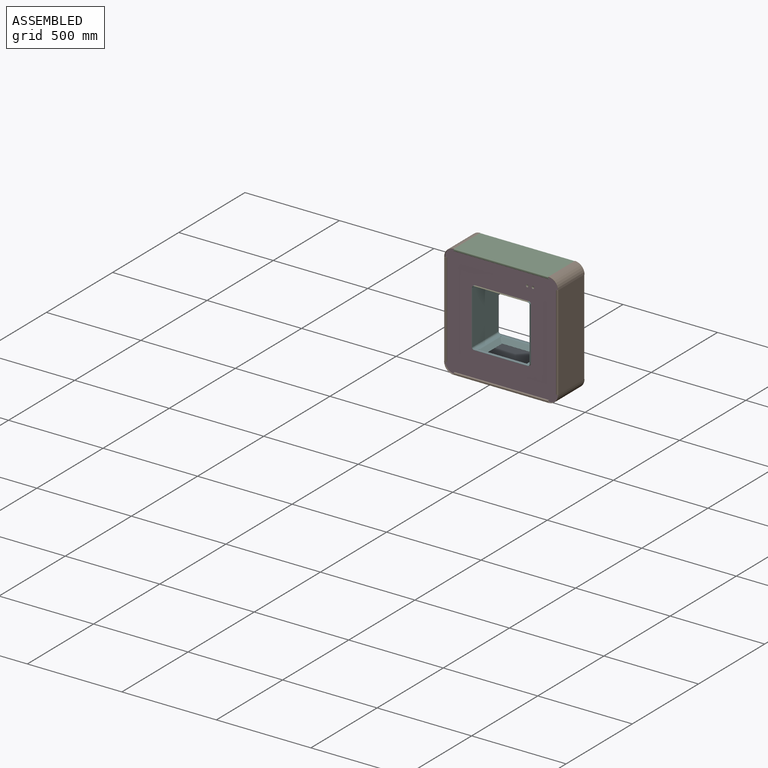
[diagram: assembled view]
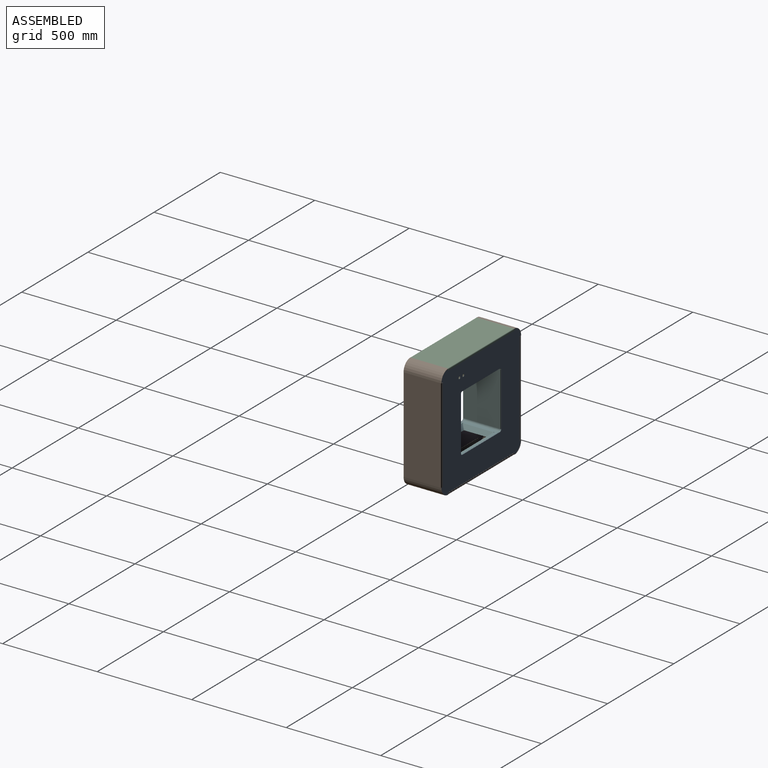
[diagram: assembled view, second angle]
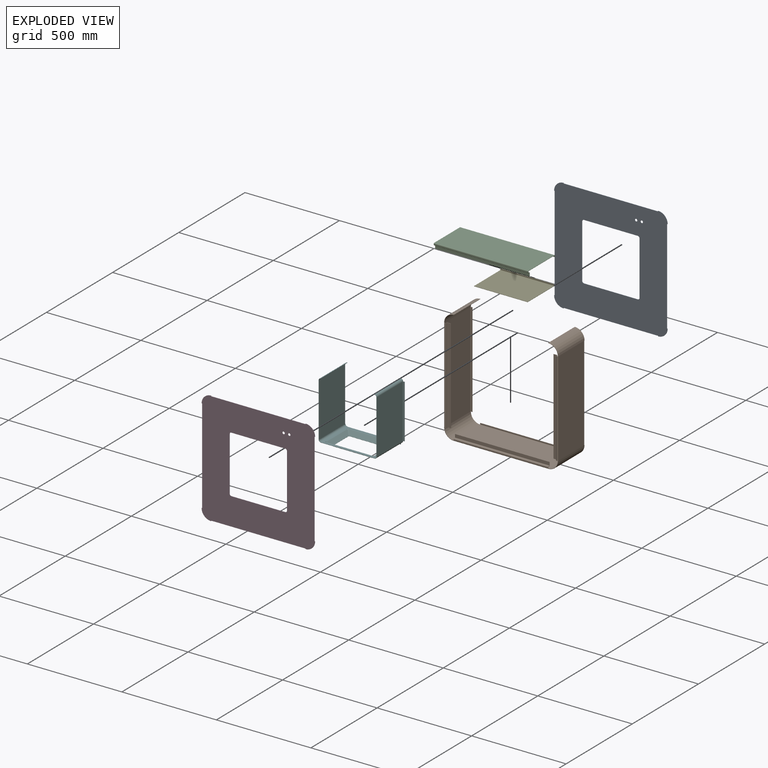
[diagram: exploded view]
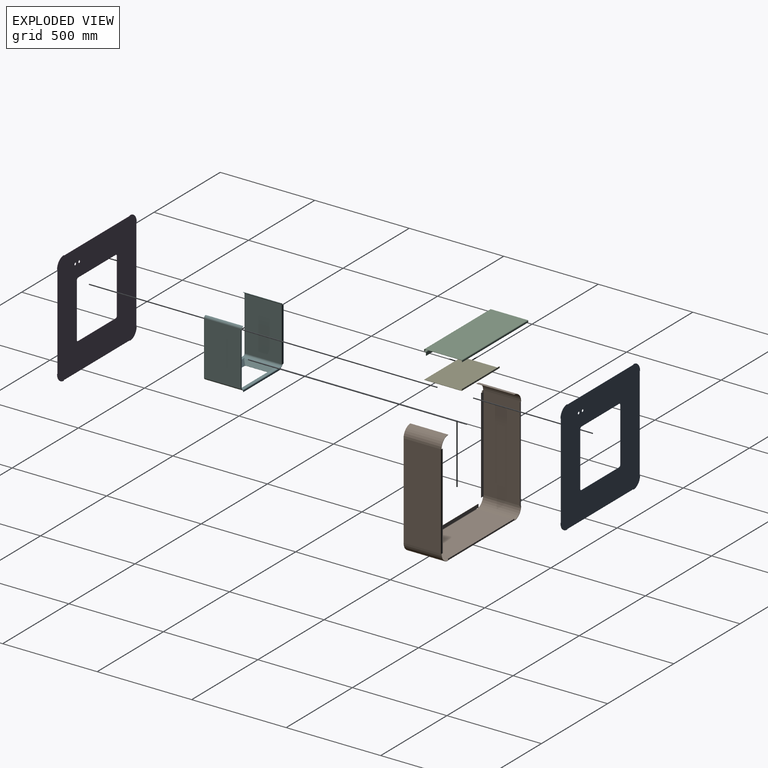
[diagram: exploded view, second angle]
ASSEMBLY  parts=6 mates=7
PART A: 28 faces, bbox 600x1.5x600 mm
  f0: cylinder r=50mm len=50mm, axis (0,-1,0), area 117.8mm2, adj f1,f25,f26,f27
  f1: plane 2.8x1.5mm, normal (1,0,0), area 4.2mm2, adj f0,f2,f26,f27
  f2: plane 500x1.5mm, normal (0,0,1), area 750mm2, adj f1,f3,f26,f27
  f3: plane 2.8x1.5mm, normal (-1,0,0), area 4.2mm2, adj f2,f4,f26,f27
  f4: cylinder r=50mm len=50mm, axis (0,-1,0), area 117.8mm2, adj f3,f5,f26,f27
  f5: plane 2.8x1.5mm, normal (0,0,-1), area 4.2mm2, adj f4,f6,f26,f27
  f6: plane 500x1.5mm, normal (1,0,0), area 750mm2, adj f5,f7,f26,f27
  f7: plane 2.8x1.5mm, normal (0,0,1), area 4.2mm2, adj f6,f8,f26,f27
  f8: cylinder r=50mm len=50mm, axis (0,-1,0), area 117.8mm2, adj f7,f9,f26,f27
  f9: plane 2.8x1.5mm, normal (-1,0,0), area 4.2mm2, adj f8,f10,f26,f27
  f10: plane 500x1.5mm, normal (0,0,-1), area 750mm2, adj f9,f11,f26,f27
  f11: plane 2.8x1.5mm, normal (1,0,0), area 4.2mm2, adj f10,f12,f26,f27
  f12: cylinder r=50mm len=50mm, axis (0,-1,0), area 117.8mm2, adj f11,f13,f26,f27
  f13: plane 2.8x1.5mm, normal (0,0,1), area 4.2mm2, adj f12,f14,f26,f27
  f14: plane 500x1.5mm, normal (-1,0,0), area 750mm2, adj f13,f25,f26,f27
  f15: cylinder r=10mm len=10mm, axis (0,-1,0), area 23.6mm2, adj f16,f22,f26,f27
  f16: plane 284x1.5mm, normal (1,0,0), area 426mm2, adj f15,f17,f26,f27
  f17: cylinder r=10mm len=10mm, axis (0,-1,0), area 23.6mm2, adj f16,f18,f26,f27
  f18: plane 284x1.5mm, normal (0,0,1), area 426mm2, adj f17,f19,f26,f27
  f19: cylinder r=10mm len=10mm, axis (0,-1,0), area 23.6mm2, adj f18,f20,f26,f27
  f20: plane 284x1.5mm, normal (-1,0,0), area 426mm2, adj f19,f21,f26,f27
  f21: cylinder r=10mm len=10mm, axis (0,-1,0), area 23.6mm2, adj f20,f22,f26,f27
  f22: plane 284x1.5mm, normal (0,0,-1), area 426mm2, adj f15,f21,f26,f27
  f23: cylinder r=6.35mm len=12.7mm, axis (0,-1,0), area 59.8mm2, adj f26,f27
  f24: cylinder r=6.35mm len=12.7mm, axis (0,-1,0), area 59.8mm2, adj f26,f27
  f25: plane 2.8x1.5mm, normal (0,0,-1), area 4.2mm2, adj f0,f14,f26,f27
  f26: plane 600x600mm, normal (0,1,0), area 259670.5mm2, adj f0,f1,f2,f3,f4,f5,f6,f7
  f27: plane 600x600mm, normal (0,-1,0), area 259670.5mm2, adj f0,f1,f2,f3,f4,f5,f6,f7
PART B: 144 faces, bbox 603x201.5x603 mm
  f0: plane 2x0.63mm, normal (0,0,-1), area 0.4mm2, adj f1,f23,f142
  f1: plane 1.5x1.5mm, normal (0,0,-1), area 1.8mm2, adj f0,f20,f23,f24,f142
  f2: plane 2x0.63mm, normal (0,0,-1), area 0.4mm2, adj f22,f23,f133
  f3: plane 2x0.63mm, normal (0,0,1), area 0.4mm2, adj f4,f40,f108
  f4: plane 1.5x1.5mm, normal (0,0,1), area 1.8mm2, adj f3,f36,f40,f41,f108
  f5: plane 2x0.63mm, normal (0,0,1), area 0.4mm2, adj f39,f40,f99
  f6: plane 2x0.63mm, normal (-1,0,0), area 0.4mm2, adj f7,f18,f49
  f7: plane 1.5x1.5mm, normal (-1,0,0), area 1.8mm2, adj f6,f14,f18,f19,f49
  f8: plane 2x0.63mm, normal (-1,0,0), area 0.4mm2, adj f17,f18,f74
  f9: plane 500x194.5mm, normal (0,0,-1), area 97250mm2, adj f18,f40,f49,f74
  f10: plane 500x194.5mm, normal (0,0,1), area 97250mm2, adj f19,f41,f50,f75
  f11: plane 500x194.5mm, normal (1,0,0), area 97250mm2, adj f18,f23,f133,f142
  f12: plane 500x194.5mm, normal (-1,0,0), area 97250mm2, adj f19,f24,f134,f143
  f13: plane 2x0.63mm, normal (0,0,1), area 0.4mm2, adj f17,f18,f133
  f14: plane 51.5x51.5mm, normal (0,1,0), area 119.6mm2, adj f7,f15,f18,f19
  f15: plane 1.5x1.5mm, normal (0,0,1), area 1.8mm2, adj f14,f16,f18,f19,f142
  f16: plane 2x0.63mm, normal (0,0,1), area 0.4mm2, adj f15,f18,f142
  f17: plane 51.5x51.5mm, normal (0,-1,0), area 119.6mm2, adj f8,f13,f18,f19,f51,f132
  f18: cylinder r=51.5mm len=200mm, axis (0,-1,0), area 16179.2mm2, adj f6,f7,f8,f9,f11,f13,f14,f15
  f19: cylinder r=50mm len=200mm, axis (0,-1,0), area 15708mm2, adj f7,f10,f12,f14,f15,f17,f42,f51
  f20: plane 51.5x51.5mm, normal (0,1,0), area 119.6mm2, adj f1,f21,f23,f24
  f21: plane 200x1.5mm, normal (-1,0,0), area 300mm2, adj f20,f22,f23,f24
  f22: plane 51.5x51.5mm, normal (0,-1,0), area 119.6mm2, adj f2,f21,f23,f24,f110
  f23: cylinder r=51.5mm len=200mm, axis (0,-1,0), area 16179.2mm2, adj f0,f1,f2,f11,f20,f21,f22
  f24: cylinder r=50mm len=200mm, axis (0,-1,0), area 15708mm2, adj f1,f12,f20,f21,f22,f110,f136
  f25: plane 2x0.63mm, normal (1,0,0), area 0.4mm2, adj f39,f40,f74
  f26: plane 500x194.5mm, normal (-1,0,0), area 97250mm2, adj f34,f40,f99,f108
  f27: plane 500x194.5mm, normal (1,0,0), area 97250mm2, adj f35,f41,f100,f109
  f28: plane 2x0.63mm, normal (0,0,-1), area 0.4mm2, adj f32,f34,f99
  f29: plane 51.5x51.5mm, normal (0,1,0), area 119.6mm2, adj f30,f33,f34,f35
  f30: plane 1.5x1.5mm, normal (0,0,-1), area 1.8mm2, adj f29,f31,f34,f35,f108
  f31: plane 2x0.63mm, normal (0,0,-1), area 0.4mm2, adj f30,f34,f108
  f32: plane 51.5x51.5mm, normal (0,-1,0), area 119.6mm2, adj f28,f33,f34,f35,f98
  f33: plane 200x1.5mm, normal (1,0,0), area 300mm2, adj f29,f32,f34,f35
  f34: cylinder r=51.5mm len=200mm, axis (0,-1,0), area 16179.2mm2, adj f26,f28,f29,f30,f31,f32,f33
  f35: cylinder r=50mm len=200mm, axis (0,-1,0), area 15708mm2, adj f27,f29,f30,f32,f33,f98,f101
  f36: plane 51.5x51.5mm, normal (0,1,0), area 119.6mm2, adj f4,f37,f40,f41
  f37: plane 1.5x1.5mm, normal (1,0,0), area 1.8mm2, adj f36,f38,f40,f41,f49
  f38: plane 2x0.63mm, normal (1,0,0), area 0.4mm2, adj f37,f40,f49
  f39: plane 51.5x51.5mm, normal (0,-1,0), area 119.6mm2, adj f5,f25,f40,f41,f73,f76
  f40: cylinder r=51.5mm len=200mm, axis (0,-1,0), area 16179.2mm2, adj f3,f4,f5,f9,f25,f26,f36,f37
  f41: cylinder r=50mm len=200mm, axis (0,-1,0), area 15708mm2, adj f4,f10,f27,f36,f37,f39,f43,f73
  f42: plane 3.5x2mm, normal (1,0,0), area 3.5mm2, adj f19,f45,f49,f50
  f43: plane 3.5x2mm, normal (-1,0,0), area 3.5mm2, adj f41,f46,f49,f50
  f44: plane 500x1.5mm, normal (0,0,1), area 750mm2, adj f45,f46,f47,f48
  f45: plane 6.5x1.5mm, normal (1,0,0), area 9.8mm2, adj f42,f44,f47,f48
  f46: plane 6.5x1.5mm, normal (-1,0,0), area 9.8mm2, adj f43,f44,f47,f48
  f47: plane 500x6.5mm, normal (0,1,0), area 3250mm2, adj f44,f45,f46,f49
  f48: plane 500x6.5mm, normal (0,-1,0), area 3250mm2, adj f44,f45,f46,f50
  f49: cylinder r=3.5mm len=500mm, axis (1,0,0), area 2748.9mm2, adj f6,f7,f9,f37,f38,f42,f43,f47
  f50: cylinder r=2mm len=500mm, axis (1,0,0), area 1570.8mm2, adj f10,f42,f43,f48
  f51: plane 3.5x2.87mm, normal (1,0,0), area 3.9mm2, adj f17,f19,f70,f74,f75
  f52: plane 500x1.5mm, normal (0,0,1), area 750mm2, adj f53,f54,f55,f56
  f53: plane 16.5x1.5mm, normal (-1,0,0), area 24.7mm2, adj f52,f55,f56,f57
  f54: plane 16.5x1.5mm, normal (1,0,0), area 24.7mm2, adj f52,f55,f56,f58
  f55: plane 500x16.5mm, normal (0,-1,0), area 8250mm2, adj f52,f53,f54,f60
  f56: plane 500x16.5mm, normal (0,1,0), area 8250mm2, adj f52,f53,f54,f59
  f57: plane 3.5x3.5mm, normal (-1,0,0), area 6.5mm2, adj f53,f59,f60,f61
  f58: plane 3.5x3.5mm, normal (1,0,0), area 6.5mm2, adj f54,f59,f60,f62
  f59: cylinder r=3.5mm len=500mm, axis (-1,0,0), area 2748.9mm2, adj f56,f57,f58,f64
  f60: cylinder r=2mm len=500mm, axis (-1,0,0), area 1570.8mm2, adj f55,f57,f58,f63
  f61: plane 4.5x1.5mm, normal (-1,0,0), area 6.8mm2, adj f57,f63,f64,f66
  f62: plane 4.5x1.5mm, normal (1,0,0), area 6.8mm2, adj f58,f63,f64,f65
  f63: plane 500x4.5mm, normal (0,0,1), area 2250mm2, adj f60,f61,f62,f67
  f64: plane 500x4.5mm, normal (0,0,-1), area 2250mm2, adj f59,f61,f62,f68
  f65: plane 3.5x3.5mm, normal (1,0,0), area 6.5mm2, adj f62,f67,f68,f70
  f66: plane 3.5x3.5mm, normal (-1,0,0), area 6.5mm2, adj f61,f67,f68,f69
  f67: cylinder r=3.5mm len=500mm, axis (1,0,0), area 2748.9mm2, adj f63,f65,f66,f71
  f68: cylinder r=2mm len=500mm, axis (1,0,0), area 1570.8mm2, adj f64,f65,f66,f72
  f69: plane 4.5x1.5mm, normal (-1,0,0), area 6.8mm2, adj f66,f71,f72,f73
  f70: plane 4.5x1.5mm, normal (1,0,0), area 6.8mm2, adj f51,f65,f71,f72
  f71: plane 500x4.5mm, normal (0,-1,0), area 2250mm2, adj f67,f69,f70,f74
  f72: plane 500x4.5mm, normal (0,1,0), area 2250mm2, adj f68,f69,f70,f75
  f73: plane 3.5x2.87mm, normal (-1,0,0), area 3.9mm2, adj f39,f41,f69,f74,f75
  f74: cylinder r=3.5mm len=500mm, axis (1,0,0), area 2748.9mm2, adj f8,f9,f25,f51,f71,f73
  f75: cylinder r=2mm len=500mm, axis (1,0,0), area 1570.8mm2, adj f10,f51,f72,f73
  f76: plane 3.5x2.87mm, normal (0,0,-1), area 3.9mm2, adj f39,f41,f95,f99,f100
  f77: plane 500x1.5mm, normal (1,0,0), area 750mm2, adj f78,f79,f80,f81
  f78: plane 16.5x1.5mm, normal (0,0,1), area 24.7mm2, adj f77,f80,f81,f82
  f79: plane 16.5x1.5mm, normal (0,0,-1), area 24.7mm2, adj f77,f80,f81,f83
  f80: plane 500x16.5mm, normal (0,-1,0), area 8250mm2, adj f77,f78,f79,f85
  f81: plane 500x16.5mm, normal (0,1,0), area 8250mm2, adj f77,f78,f79,f84
  f82: plane 3.5x3.5mm, normal (0,0,1), area 6.5mm2, adj f78,f84,f85,f86
  f83: plane 3.5x3.5mm, normal (0,0,-1), area 6.5mm2, adj f79,f84,f85,f87
  f84: cylinder r=3.5mm len=500mm, axis (0,0,1), area 2748.9mm2, adj f81,f82,f83,f89
  f85: cylinder r=2mm len=500mm, axis (0,0,1), area 1570.8mm2, adj f80,f82,f83,f88
  f86: plane 4.5x1.5mm, normal (0,0,1), area 6.8mm2, adj f82,f88,f89,f91
  f87: plane 4.5x1.5mm, normal (0,0,-1), area 6.8mm2, adj f83,f88,f89,f90
  f88: plane 500x4.5mm, normal (1,0,0), area 2250mm2, adj f85,f86,f87,f92
  f89: plane 500x4.5mm, normal (-1,0,0), area 2250mm2, adj f84,f86,f87,f93
  f90: plane 3.5x3.5mm, normal (0,0,-1), area 6.5mm2, adj f87,f92,f93,f95
  f91: plane 3.5x3.5mm, normal (0,0,1), area 6.5mm2, adj f86,f92,f93,f94
  f92: cylinder r=3.5mm len=500mm, axis (0,0,-1), area 2748.9mm2, adj f88,f90,f91,f96
  f93: cylinder r=2mm len=500mm, axis (0,0,-1), area 1570.8mm2, adj f89,f90,f91,f97
  f94: plane 4.5x1.5mm, normal (0,0,1), area 6.8mm2, adj f91,f96,f97,f98
  f95: plane 4.5x1.5mm, normal (0,0,-1), area 6.8mm2, adj f76,f90,f96,f97
  f96: plane 500x4.5mm, normal (0,-1,0), area 2250mm2, adj f92,f94,f95,f99
  f97: plane 500x4.5mm, normal (0,1,0), area 2250mm2, adj f93,f94,f95,f100
  f98: plane 3.5x2.87mm, normal (0,0,1), area 3.9mm2, adj f32,f35,f94,f99,f100
  f99: cylinder r=3.5mm len=500mm, axis (0,0,-1), area 2748.9mm2, adj f5,f26,f28,f76,f96,f98
  f100: cylinder r=2mm len=500mm, axis (0,0,-1), area 1570.8mm2, adj f27,f76,f97,f98
  f101: plane 3.5x2mm, normal (0,0,1), area 3.5mm2, adj f35,f105,f108,f109
  f102: plane 3.5x2mm, normal (0,0,-1), area 3.5mm2, adj f41,f104,f108,f109
  f103: plane 500x1.5mm, normal (1,0,0), area 750mm2, adj f104,f105,f106,f107
  f104: plane 6.5x1.5mm, normal (0,0,-1), area 9.8mm2, adj f102,f103,f106,f107
  f105: plane 6.5x1.5mm, normal (0,0,1), area 9.8mm2, adj f101,f103,f106,f107
  f106: plane 500x6.5mm, normal (0,1,0), area 3250mm2, adj f103,f104,f105,f108
  f107: plane 500x6.5mm, normal (0,-1,0), area 3250mm2, adj f103,f104,f105,f109
  f108: cylinder r=3.5mm len=500mm, axis (0,0,-1), area 2748.9mm2, adj f3,f4,f26,f30,f31,f101,f102,f106
  f109: cylinder r=2mm len=500mm, axis (0,0,-1), area 1570.8mm2, adj f27,f101,f102,f107
  f110: plane 3.5x2.87mm, normal (0,0,1), area 3.9mm2, adj f22,f24,f129,f133,f134
  f111: plane 500x1.5mm, normal (-1,0,0), area 750mm2, adj f112,f113,f114,f115
  f112: plane 16.5x1.5mm, normal (0,0,-1), area 24.7mm2, adj f111,f114,f115,f116
  f113: plane 16.5x1.5mm, normal (0,0,1), area 24.7mm2, adj f111,f114,f115,f117
  f114: plane 500x16.5mm, normal (0,-1,0), area 8250mm2, adj f111,f112,f113,f119
  f115: plane 500x16.5mm, normal (0,1,0), area 8250mm2, adj f111,f112,f113,f118
  f116: plane 3.5x3.5mm, normal (0,0,-1), area 6.5mm2, adj f112,f118,f119,f120
  f117: plane 3.5x3.5mm, normal (0,0,1), area 6.5mm2, adj f113,f118,f119,f121
  f118: cylinder r=3.5mm len=500mm, axis (0,0,-1), area 2748.9mm2, adj f115,f116,f117,f123
  f119: cylinder r=2mm len=500mm, axis (0,0,-1), area 1570.8mm2, adj f114,f116,f117,f122
  f120: plane 4.5x1.5mm, normal (0,0,-1), area 6.8mm2, adj f116,f122,f123,f125
  f121: plane 4.5x1.5mm, normal (0,0,1), area 6.8mm2, adj f117,f122,f123,f124
  f122: plane 500x4.5mm, normal (-1,0,0), area 2250mm2, adj f119,f120,f121,f126
  f123: plane 500x4.5mm, normal (1,0,0), area 2250mm2, adj f118,f120,f121,f127
  f124: plane 3.5x3.5mm, normal (0,0,1), area 6.5mm2, adj f121,f126,f127,f129
  f125: plane 3.5x3.5mm, normal (0,0,-1), area 6.5mm2, adj f120,f126,f127,f128
  f126: cylinder r=3.5mm len=500mm, axis (0,0,1), area 2748.9mm2, adj f122,f124,f125,f130
  f127: cylinder r=2mm len=500mm, axis (0,0,1), area 1570.8mm2, adj f123,f124,f125,f131
  f128: plane 4.5x1.5mm, normal (0,0,-1), area 6.8mm2, adj f125,f130,f131,f132
  f129: plane 4.5x1.5mm, normal (0,0,1), area 6.8mm2, adj f110,f124,f130,f131
  f130: plane 500x4.5mm, normal (0,-1,0), area 2250mm2, adj f126,f128,f129,f133
  f131: plane 500x4.5mm, normal (0,1,0), area 2250mm2, adj f127,f128,f129,f134
  f132: plane 3.5x2.87mm, normal (0,0,-1), area 3.9mm2, adj f17,f19,f128,f133,f134
  f133: cylinder r=3.5mm len=500mm, axis (0,0,1), area 2748.9mm2, adj f2,f11,f13,f110,f130,f132
  f134: cylinder r=2mm len=500mm, axis (0,0,1), area 1570.8mm2, adj f12,f110,f131,f132
  f135: plane 3.5x2mm, normal (0,0,-1), area 3.5mm2, adj f19,f139,f142,f143
  f136: plane 3.5x2mm, normal (0,0,1), area 3.5mm2, adj f24,f138,f142,f143
  f137: plane 500x1.5mm, normal (-1,0,0), area 750mm2, adj f138,f139,f140,f141
  f138: plane 6.5x1.5mm, normal (0,0,1), area 9.8mm2, adj f136,f137,f140,f141
  f139: plane 6.5x1.5mm, normal (0,0,-1), area 9.8mm2, adj f135,f137,f140,f141
  f140: plane 500x6.5mm, normal (0,1,0), area 3250mm2, adj f137,f138,f139,f142
  f141: plane 500x6.5mm, normal (0,-1,0), area 3250mm2, adj f137,f138,f139,f143
  f142: cylinder r=3.5mm len=500mm, axis (0,0,1), area 2748.9mm2, adj f0,f1,f11,f15,f16,f135,f136,f140
  f143: cylinder r=2mm len=500mm, axis (0,0,1), area 1570.8mm2, adj f12,f135,f136,f141
PART C: 38 faces, bbox 500x201.5x30 mm
  f0: plane 194.5x1.5mm, normal (-1,0,0), area 291.8mm2, adj f2,f3,f9,f34
  f1: plane 194.5x1.5mm, normal (1,0,0), area 291.8mm2, adj f2,f3,f10,f35
  f2: plane 500x194.5mm, normal (0,0,1), area 97250mm2, adj f0,f1,f11,f36
  f3: plane 500x194.5mm, normal (0,0,-1), area 97250mm2, adj f0,f1,f12,f37
  f4: plane 500x1.5mm, normal (0,0,-1), area 750mm2, adj f5,f6,f7,f8
  f5: plane 6.5x1.5mm, normal (-1,0,0), area 9.8mm2, adj f4,f7,f8,f9
  f6: plane 6.5x1.5mm, normal (1,0,0), area 9.8mm2, adj f4,f7,f8,f10
  f7: plane 500x6.5mm, normal (0,1,0), area 3250mm2, adj f4,f5,f6,f11
  f8: plane 500x6.5mm, normal (0,-1,0), area 3250mm2, adj f4,f5,f6,f12
  f9: plane 3.5x3.5mm, normal (-1,0,0), area 6.5mm2, adj f0,f5,f11,f12
  f10: plane 3.5x3.5mm, normal (1,0,0), area 6.5mm2, adj f1,f6,f11,f12
  f11: cylinder r=3.5mm len=500mm, axis (-1,0,0), area 2748.9mm2, adj f2,f7,f9,f10
  f12: cylinder r=2mm len=500mm, axis (-1,0,0), area 1570.8mm2, adj f3,f8,f9,f10
  f13: plane 4.5x1.5mm, normal (1,0,0), area 6.8mm2, adj f15,f16,f31,f35
  f14: plane 4.5x1.5mm, normal (-1,0,0), area 6.8mm2, adj f15,f16,f30,f34
  f15: plane 500x4.5mm, normal (0,-1,0), area 2250mm2, adj f13,f14,f32,f36
  f16: plane 500x4.5mm, normal (0,1,0), area 2250mm2, adj f13,f14,f33,f37
  f17: plane 4.5x1.5mm, normal (1,0,0), area 6.8mm2, adj f19,f20,f26,f31
  f18: plane 4.5x1.5mm, normal (-1,0,0), area 6.8mm2, adj f19,f20,f27,f30
  f19: plane 500x4.5mm, normal (0,0,-1), area 2250mm2, adj f17,f18,f29,f32
  f20: plane 500x4.5mm, normal (0,0,1), area 2250mm2, adj f17,f18,f28,f33
  f21: plane 500x1.5mm, normal (0,0,-1), area 750mm2, adj f22,f23,f24,f25
  f22: plane 16.5x1.5mm, normal (1,0,0), area 24.7mm2, adj f21,f24,f25,f26
  f23: plane 16.5x1.5mm, normal (-1,0,0), area 24.7mm2, adj f21,f24,f25,f27
  f24: plane 500x16.5mm, normal (0,-1,0), area 8250mm2, adj f21,f22,f23,f29
  f25: plane 500x16.5mm, normal (0,1,0), area 8250mm2, adj f21,f22,f23,f28
  f26: plane 3.5x3.5mm, normal (1,0,0), area 6.5mm2, adj f17,f22,f28,f29
  f27: plane 3.5x3.5mm, normal (-1,0,0), area 6.5mm2, adj f18,f23,f28,f29
  f28: cylinder r=3.5mm len=500mm, axis (1,0,0), area 2748.9mm2, adj f20,f25,f26,f27
  f29: cylinder r=2mm len=500mm, axis (1,0,0), area 1570.8mm2, adj f19,f24,f26,f27
  f30: plane 3.5x3.5mm, normal (-1,0,0), area 6.5mm2, adj f14,f18,f32,f33
  f31: plane 3.5x3.5mm, normal (1,0,0), area 6.5mm2, adj f13,f17,f32,f33
  f32: cylinder r=3.5mm len=500mm, axis (-1,0,0), area 2748.9mm2, adj f15,f19,f30,f31
  f33: cylinder r=2mm len=500mm, axis (-1,0,0), area 1570.8mm2, adj f16,f20,f30,f31
  f34: plane 3.5x3.5mm, normal (-1,0,0), area 6.5mm2, adj f0,f14,f36,f37
  f35: plane 3.5x3.5mm, normal (1,0,0), area 6.5mm2, adj f1,f13,f36,f37
  f36: cylinder r=3.5mm len=500mm, axis (-1,0,0), area 2748.9mm2, adj f2,f15,f34,f35
  f37: cylinder r=2mm len=500mm, axis (-1,0,0), area 1570.8mm2, adj f3,f16,f34,f35
PART D: same geometry as A
PART E: 14 faces, bbox 284x200x10 mm
  f0: plane 196.5x1.5mm, normal (1,0,0), area 294.8mm2, adj f1,f3,f4,f10
  f1: plane 284x1.5mm, normal (0,-1,0), area 426mm2, adj f0,f2,f3,f4
  f2: plane 196.5x1.5mm, normal (-1,0,0), area 294.8mm2, adj f1,f3,f4,f11
  f3: plane 284x196.5mm, normal (0,0,-1), area 55806mm2, adj f0,f1,f2,f12
  f4: plane 284x196.5mm, normal (0,0,1), area 55806mm2, adj f0,f1,f2,f13
  f5: plane 284x1.5mm, normal (0,0,1), area 426mm2, adj f6,f7,f8,f9
  f6: plane 6.5x1.5mm, normal (1,0,0), area 9.8mm2, adj f5,f8,f9,f10
  f7: plane 6.5x1.5mm, normal (-1,0,0), area 9.8mm2, adj f5,f8,f9,f11
  f8: plane 284x6.5mm, normal (0,1,0), area 1846mm2, adj f5,f6,f7,f12
  f9: plane 284x6.5mm, normal (0,-1,0), area 1846mm2, adj f5,f6,f7,f13
  f10: plane 3.5x3.5mm, normal (1,0,0), area 6.5mm2, adj f0,f6,f12,f13
  f11: plane 3.5x3.5mm, normal (-1,0,0), area 6.5mm2, adj f2,f7,f12,f13
  f12: cylinder r=3.5mm len=284mm, axis (1,0,0), area 1561.4mm2, adj f3,f8,f10,f11
  f13: cylinder r=2mm len=284mm, axis (1,0,0), area 892.2mm2, adj f4,f9,f10,f11
PART F: 112 faces, bbox 324x200x328.2 mm
  f0: plane 3.18x1.5mm, normal (-1,0,0), area 4.8mm2, adj f6,f10,f11,f102
  f1: plane 3.18x1.5mm, normal (1,0,0), area 4.8mm2, adj f9,f10,f11,f98
  f2: plane 3.5x2mm, normal (1,0,0), area 3.5mm2, adj f49,f54,f55,f66
  f3: plane 3.18x1.5mm, normal (0,-1,0), area 4.8mm2, adj f7,f10,f11,f41
  f4: plane 3.18x1.5mm, normal (0,1,0), area 4.8mm2, adj f5,f10,f11,f15
  f5: plane 3.18x1.5mm, normal (-1,0,0), area 4.8mm2, adj f4,f10,f11,f103
  f6: plane 3.18x1.5mm, normal (0,-1,0), area 4.8mm2, adj f0,f10,f11,f42
  f7: plane 3.18x1.5mm, normal (1,0,0), area 4.8mm2, adj f3,f10,f11,f99
  f8: plane 284x1.5mm, normal (0,-1,0), area 426mm2, adj f10,f11,f58,f64
  f9: plane 3.18x1.5mm, normal (0,1,0), area 4.8mm2, adj f1,f10,f11,f16
  f10: plane 284x196.5mm, normal (0,0,-1), area 13166mm2, adj f0,f1,f3,f4,f5,f6,f7,f8
  f11: plane 284x196.5mm, normal (0,0,1), area 13166mm2, adj f0,f1,f3,f4,f5,f6,f7,f8
  f12: plane 207.5x1.06mm, normal (0,0.71,-0.71), area 311.3mm2, adj f13,f14,f20,f37
  f13: plane 248.46x20.48mm, normal (0,-0.71,-0.71), area 6603.4mm2, adj f12,f18,f21,f39
  f14: plane 248.46x20.48mm, normal (0,0.71,0.71), area 6603.4mm2, adj f12,f17,f22,f40
  f15: plane 1.79x1.77mm, normal (1,0,0), area 2.1mm2, adj f4,f17,f18,f19
  f16: plane 1.79x1.77mm, normal (-1,0,0), area 2.1mm2, adj f9,f17,f18,f38
  f17: cylinder r=2.5mm len=248.46mm, axis (1,0,0), area 487.9mm2, adj f11,f14,f15,f16
  f18: cylinder r=1mm len=248.46mm, axis (1,0,0), area 195.1mm2, adj f10,f13,f15,f16
  f19: plane 2.48x2.48mm, normal (0.58,-0.58,0.58), area 4.3mm2, adj f15,f21,f22,f103
  f20: plane 2.48x2.48mm, normal (-0.58,0.58,-0.58), area 4.3mm2, adj f12,f21,f22,f23
  f21: cylinder r=3.5mm len=22.96mm, axis (0.58,-0.58,0.58), area 130mm2, adj f13,f19,f20,f24
  f22: cylinder r=2mm len=21.9mm, axis (0.58,-0.58,0.58), area 74.3mm2, adj f14,f19,f20,f25
  f23: plane 120x1.06mm, normal (-0.71,0,-0.71), area 180mm2, adj f20,f24,f25,f26
  f24: plane 160.96x20.48mm, normal (0.71,0,-0.71), area 4069mm2, adj f21,f23,f28,f105
  f25: plane 160.96x20.48mm, normal (-0.71,0,0.71), area 4069mm2, adj f22,f23,f29,f104
  f26: plane 2.48x2.48mm, normal (-0.58,-0.58,-0.58), area 4.3mm2, adj f23,f28,f29,f30
  f27: plane 2.48x2.48mm, normal (0.58,0.58,0.58), area 4.3mm2, adj f28,f29,f42,f102
  f28: cylinder r=3.5mm len=22.96mm, axis (-0.58,-0.58,-0.58), area 130mm2, adj f24,f26,f27,f31
  f29: cylinder r=2mm len=21.9mm, axis (-0.58,-0.58,-0.58), area 74.3mm2, adj f25,f26,f27,f32
  f30: plane 207.5x1.06mm, normal (0,-0.71,-0.71), area 311.3mm2, adj f26,f31,f32,f34
  f31: plane 248.46x20.48mm, normal (0,0.71,-0.71), area 6603.4mm2, adj f28,f30,f35,f44
  f32: plane 248.46x20.48mm, normal (0,-0.71,0.71), area 6603.4mm2, adj f29,f30,f36,f43
  f33: plane 2.48x2.48mm, normal (-0.58,0.58,0.58), area 4.3mm2, adj f35,f36,f41,f99
  f34: plane 2.48x2.48mm, normal (0.58,-0.58,-0.58), area 4.3mm2, adj f30,f35,f36,f45
  f35: cylinder r=3.5mm len=22.96mm, axis (-0.58,0.58,0.58), area 130mm2, adj f31,f33,f34,f46
  f36: cylinder r=2mm len=21.9mm, axis (-0.58,0.58,0.58), area 74.3mm2, adj f32,f33,f34,f47
  f37: plane 2.48x2.48mm, normal (0.58,0.58,-0.58), area 4.3mm2, adj f12,f39,f40,f45
  f38: plane 2.48x2.48mm, normal (-0.58,-0.58,0.58), area 4.3mm2, adj f16,f39,f40,f98
  f39: cylinder r=3.5mm len=22.96mm, axis (0.58,0.58,-0.58), area 130mm2, adj f13,f37,f38,f46
  f40: cylinder r=2mm len=21.9mm, axis (0.58,0.58,-0.58), area 74.3mm2, adj f14,f37,f38,f47
  f41: plane 1.79x1.77mm, normal (-1,0,0), area 2.1mm2, adj f3,f33,f43,f44
  f42: plane 1.79x1.77mm, normal (1,0,0), area 2.1mm2, adj f6,f27,f43,f44
  f43: cylinder r=2.5mm len=248.46mm, axis (-1,0,0), area 487.9mm2, adj f11,f32,f41,f42
  f44: cylinder r=1mm len=248.46mm, axis (-1,0,0), area 195.1mm2, adj f10,f31,f41,f42
  f45: plane 120x1.06mm, normal (0.71,0,-0.71), area 180mm2, adj f34,f37,f46,f47
  f46: plane 160.96x20.48mm, normal (-0.71,0,-0.71), area 4069mm2, adj f35,f39,f45,f101
  f47: plane 160.96x20.48mm, normal (0.71,0,0.71), area 4069mm2, adj f36,f40,f45,f100
  f48: plane 284x1.5mm, normal (0,0,-1), area 426mm2, adj f49,f50,f51,f52
  f49: plane 6.5x1.5mm, normal (1,0,0), area 9.8mm2, adj f2,f48,f51,f52
  f50: plane 6.5x1.5mm, normal (-1,0,0), area 9.8mm2, adj f48,f51,f52,f53
  f51: plane 284x6.5mm, normal (0,-1,0), area 1846mm2, adj f48,f49,f50,f55
  f52: plane 284x6.5mm, normal (0,1,0), area 1846mm2, adj f48,f49,f50,f54
  f53: plane 3.5x2mm, normal (-1,0,0), area 3.5mm2, adj f50,f54,f55,f60
  f54: cylinder r=3.5mm len=284mm, axis (1,0,0), area 1561.4mm2, adj f2,f11,f52,f53,f56,f65
  f55: cylinder r=2mm len=284mm, axis (1,0,0), area 892.2mm2, adj f2,f10,f51,f53
  f56: plane 3.5x1.5mm, normal (1,0,0), area 2.2mm2, adj f54,f57,f60,f61
  f57: plane 11.5x11.5mm, normal (0,1,0), area 25.3mm2, adj f56,f59,f60,f61
  f58: plane 11.5x11.5mm, normal (0,-1,0), area 25.3mm2, adj f8,f60,f61,f87
  f59: plane 3.5x1.5mm, normal (0,0,1), area 2.2mm2, adj f57,f60,f61,f96
  f60: cylinder r=11.5mm len=200mm, axis (0,-1,0), area 3612.8mm2, adj f10,f53,f56,f57,f58,f59,f86,f88
  f61: cylinder r=10mm len=200mm, axis (0,-1,0), area 3141.6mm2, adj f11,f56,f57,f58,f59,f89
  f62: plane 11.5x11.5mm, normal (0,1,0), area 25.3mm2, adj f63,f65,f66,f67
  f63: plane 3.5x1.5mm, normal (0,0,1), area 2.2mm2, adj f62,f66,f67,f78
  f64: plane 11.5x11.5mm, normal (0,-1,0), area 25.3mm2, adj f8,f66,f67,f69
  f65: plane 3.5x1.5mm, normal (-1,0,0), area 2.2mm2, adj f54,f62,f66,f67
  f66: cylinder r=11.5mm len=200mm, axis (0,-1,0), area 3612.8mm2, adj f2,f10,f62,f63,f64,f65,f70,f77
  f67: cylinder r=10mm len=200mm, axis (0,-1,0), area 3141.6mm2, adj f11,f62,f63,f64,f65,f71
  f68: plane 3.5x2mm, normal (0,0,1), area 3.5mm2, adj f73,f78,f79,f84
  f69: plane 284x1.5mm, normal (0,-1,0), area 426mm2, adj f64,f70,f71,f83
  f70: plane 284x196.5mm, normal (1,0,0), area 55806mm2, adj f66,f69,f79,f84
  f71: plane 284x196.5mm, normal (-1,0,0), area 55806mm2, adj f67,f69,f78,f85
  f72: plane 284x1.5mm, normal (1,0,0), area 426mm2, adj f73,f74,f75,f76
  f73: plane 6.5x1.5mm, normal (0,0,1), area 9.8mm2, adj f68,f72,f75,f76
  f74: plane 6.5x1.5mm, normal (0,0,-1), area 9.8mm2, adj f72,f75,f76,f77
  f75: plane 284x6.5mm, normal (0,-1,0), area 1846mm2, adj f72,f73,f74,f79
  f76: plane 284x6.5mm, normal (0,1,0), area 1846mm2, adj f72,f73,f74,f78
  f77: plane 3.5x2mm, normal (0,0,-1), area 3.5mm2, adj f66,f74,f78,f79
  f78: cylinder r=3.5mm len=284mm, axis (0,0,-1), area 1561.4mm2, adj f63,f68,f71,f76,f77,f80
  f79: cylinder r=2mm len=284mm, axis (0,0,-1), area 892.2mm2, adj f68,f70,f75,f77
  f80: plane 3.5x1.5mm, normal (0,0,-1), area 2.2mm2, adj f78,f81,f84,f85
  f81: plane 11.5x11.5mm, normal (0,1,0), area 25.3mm2, adj f80,f82,f84,f85
  f82: plane 200x1.5mm, normal (-1,0,0), area 300mm2, adj f81,f83,f84,f85
  f83: plane 11.5x11.5mm, normal (0,-1,0), area 25.3mm2, adj f69,f82,f84,f85
  f84: cylinder r=11.5mm len=200mm, axis (0,-1,0), area 3612.8mm2, adj f68,f70,f80,f81,f82,f83
  f85: cylinder r=10mm len=200mm, axis (0,-1,0), area 3141.6mm2, adj f71,f80,f81,f82,f83
  f86: plane 3.5x2mm, normal (0,0,-1), area 3.5mm2, adj f60,f91,f96,f97
  f87: plane 284x1.5mm, normal (0,-1,0), area 426mm2, adj f58,f88,f89,f108
  f88: plane 284x196.5mm, normal (-1,0,0), area 55806mm2, adj f60,f87,f97,f110
  f89: plane 284x196.5mm, normal (1,0,0), area 55806mm2, adj f61,f87,f96,f111
  f90: plane 284x1.5mm, normal (-1,0,0), area 426mm2, adj f91,f92,f93,f94
  f91: plane 6.5x1.5mm, normal (0,0,-1), area 9.8mm2, adj f86,f90,f93,f94
  f92: plane 6.5x1.5mm, normal (0,0,1), area 9.8mm2, adj f90,f93,f94,f95
  f93: plane 284x6.5mm, normal (0,-1,0), area 1846mm2, adj f90,f91,f92,f97
  f94: plane 284x6.5mm, normal (0,1,0), area 1846mm2, adj f90,f91,f92,f96
  f95: plane 3.5x2mm, normal (0,0,1), area 3.5mm2, adj f92,f96,f97,f110
  f96: cylinder r=3.5mm len=284mm, axis (0,0,-1), area 1561.4mm2, adj f59,f86,f89,f94,f95,f106
  f97: cylinder r=2mm len=284mm, axis (0,0,-1), area 892.2mm2, adj f86,f88,f93,f95
  f98: plane 1.79x1.77mm, normal (0,-1,0), area 2.1mm2, adj f1,f38,f100,f101
  f99: plane 1.79x1.77mm, normal (0,1,0), area 2.1mm2, adj f7,f33,f100,f101
  f100: cylinder r=2.5mm len=160.96mm, axis (0,-1,0), area 316.1mm2, adj f11,f47,f98,f99
  f101: cylinder r=1mm len=160.96mm, axis (0,-1,0), area 126.4mm2, adj f10,f46,f98,f99
  f102: plane 1.79x1.77mm, normal (0,1,0), area 2.1mm2, adj f0,f27,f104,f105
  f103: plane 1.79x1.77mm, normal (0,-1,0), area 2.1mm2, adj f5,f19,f104,f105
  f104: cylinder r=2.5mm len=160.96mm, axis (0,1,0), area 316.1mm2, adj f11,f25,f102,f103
  f105: cylinder r=1mm len=160.96mm, axis (0,1,0), area 126.4mm2, adj f10,f24,f102,f103
  f106: plane 3.5x1.5mm, normal (0,0,-1), area 2.2mm2, adj f96,f107,f110,f111
  f107: plane 11.5x11.5mm, normal (0,1,0), area 25.3mm2, adj f106,f109,f110,f111
  f108: plane 11.5x11.5mm, normal (0,-1,0), area 25.3mm2, adj f87,f109,f110,f111
  f109: plane 200x1.5mm, normal (1,0,0), area 300mm2, adj f107,f108,f110,f111
  f110: cylinder r=11.5mm len=200mm, axis (0,-1,0), area 3612.8mm2, adj f88,f95,f106,f107,f108,f109
  f111: cylinder r=10mm len=200mm, axis (0,-1,0), area 3141.6mm2, adj f89,f106,f107,f108,f109
PLACE A t=(468.86,1109.12,-111.87)mm
PLACE B t=(468.76,1109.92,-111.87)mm
PLACE C t=(468.76,1109.92,-111.87)mm
PLACE D t=(468.76,917.42,-111.87)mm
PLACE E t=(468.86,1107.62,-111.87)mm
PLACE F t=(468.86,1107.62,-111.87)mm
MATE parallel D.f27 <-> B.f39  axis (0,-1,0) through (168.76,915.92,-361.87)mm
MATE parallel F.f81 <-> A.f27  axis (0,1,0) through (610.86,1107.62,41.63)mm
MATE parallel C.f0 <-> B.f33  axis (-1,0,0) through (218.76,911.92,189.63)mm
MATE parallel E.f2 <-> F.f109  axis (-1,0,0) through (326.86,907.62,40.13)mm
MATE parallel F.f81 <-> A.f27  axis (0,1,0) through (610.86,1107.62,40.13)mm
MATE parallel A.f26 <-> B.f14  axis (0,1,0) through (767.46,1109.12,-361.87)mm
MATE parallel C.f6 <-> A.f3  axis (1,0,0) through (718.76,1109.17,179.63)mm
